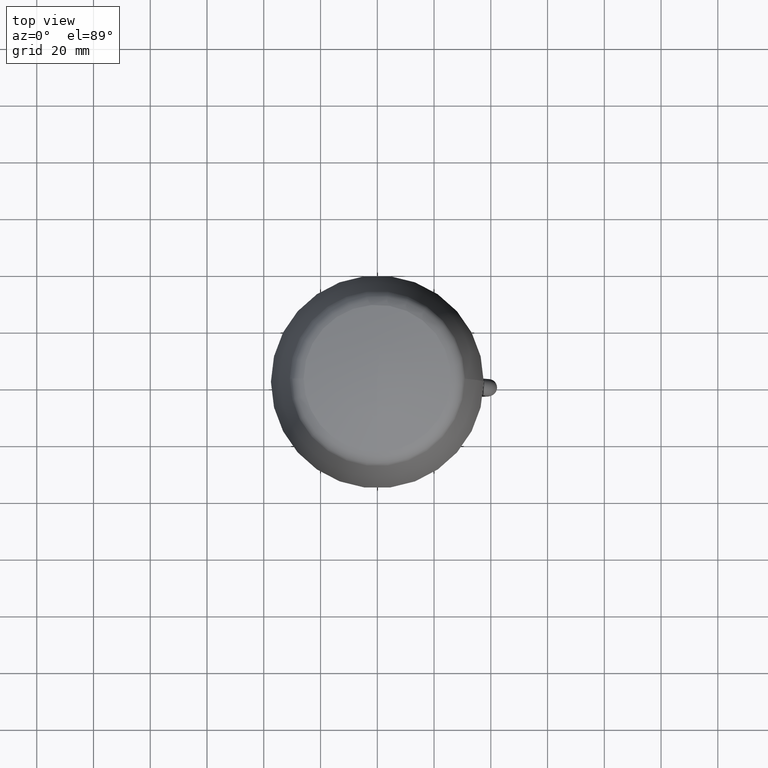
[diagram: clean part render]
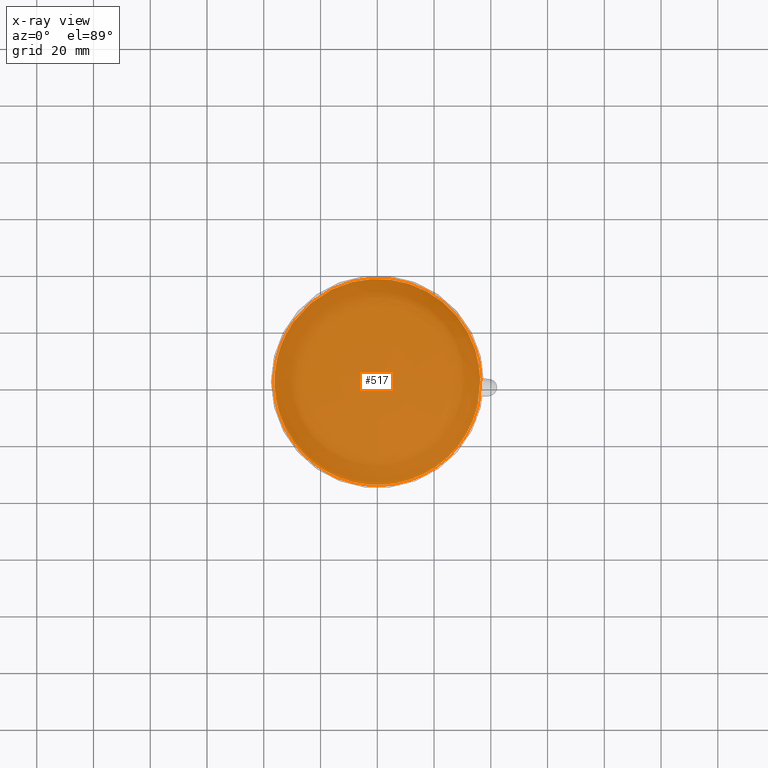
[diagram: x-ray — body ghosted, one internal face saturated and labeled with its STEP entity id]
A machine part, top view, then the same camera in x-ray: the body is ghosted and one INTERNAL B-rep face — a face not visible from any outside direction — is saturated and labeled: STEP entity #517.
In plain terms, the highlighted face is a freeform B-spline surface patch.
Its self-contained STEP definition (entity closure, byte-faithful):
#25=B_SPLINE_SURFACE_WITH_KNOTS('',3,3,((#4764,#4765,#4766,#4767),(#4768,
#4769,#4770,#4771),(#4772,#4773,#4774,#4775),(#4776,#4777,#4778,#4779)),
 .UNSPECIFIED.,.F.,.F.,.F.,(4,4),(4,4),(0.,1.),(0.,1.),.UNSPECIFIED.);
#278=FACE_OUTER_BOUND('',#1354,.T.);
#342=B_SPLINE_CURVE_WITH_KNOTS('',3,(#4540,#4541,#4542,#4543,#4544,#4545,
#4546,#4547,#4548,#4549),.UNSPECIFIED.,.F.,.F.,(4,2,2,2,4),(0.,0.25,0.5,
0.75,1.),.UNSPECIFIED.);
#343=B_SPLINE_CURVE_WITH_KNOTS('',3,(#4552,#4553,#4554,#4555,#4556,#4557,
#4558,#4559,#4560,#4561,#4562,#4563,#4564,#4565,#4566,#4567,#4568,#4569),
 .UNSPECIFIED.,.F.,.F.,(4,2,2,2,2,2,2,2,4),(0.,0.125,0.25,0.375,0.5,0.625,
0.75,0.875,1.),.UNSPECIFIED.);
#517=ADVANCED_FACE('',(#278),#25,.T.);
#1354=EDGE_LOOP('',(#1931,#1932));
#1931=ORIENTED_EDGE('',*,*,#2534,.F.);
#1932=ORIENTED_EDGE('',*,*,#2535,.F.);
#2252=VERTEX_POINT('',#4550);
#2253=VERTEX_POINT('',#4551);
#2534=EDGE_CURVE('',#2252,#2253,#342,.T.);
#2535=EDGE_CURVE('',#2253,#2252,#343,.T.);
#4540=CARTESIAN_POINT('',(-29.6035987901607,20.9600984724567,17.9522920344817));
#4541=CARTESIAN_POINT('',(-25.2297304276583,27.1359652782506,17.9522920344817));
#4542=CARTESIAN_POINT('',(-18.8749691419602,31.8857120070168,17.9522920344817));
#4543=CARTESIAN_POINT('',(-4.55175512061214,36.7779263441325,17.9522920344817));
#4544=CARTESIAN_POINT('',(3.38084390830722,36.9081478170935,17.9522920344817));
#4545=CARTESIAN_POINT('',(17.8569180519841,32.4887023305654,17.9522920344817));
#4546=CARTESIAN_POINT('',(24.3641568222882,27.9500980768455,17.9522920344817));
#4547=CARTESIAN_POINT('',(33.5126026904515,15.8921480346987,17.9522920344817));
#4548=CARTESIAN_POINT('',(36.1309095024734,8.40298556992652,17.9522920344817));
#4549=CARTESIAN_POINT('',(36.3095659279161,0.837264379117673,17.9522920344817));
#4550=CARTESIAN_POINT('',(-29.6036099685723,20.9601063889385,17.9522920344817));
#4551=CARTESIAN_POINT('',(36.3095993967024,0.837265165082106,17.9522920344817));
#4552=CARTESIAN_POINT('',(36.3095659279161,0.837264379117665,17.9522920344817));
#4553=CARTESIAN_POINT('',(36.4445858730522,-4.88054430068081,17.9522920344817));
#4554=CARTESIAN_POINT('',(35.2035519691132,-10.6261377043341,17.9522920344817));
#4555=CARTESIAN_POINT('',(30.2376640194783,-20.9308076558233,17.9522920344817));
#4556=CARTESIAN_POINT('',(26.5168977133739,-25.4814017715613,17.9522920344817));
#4557=CARTESIAN_POINT('',(17.4040782381703,-32.3953577411783,17.9522920344817));
#4558=CARTESIAN_POINT('',(12.0195264129066,-34.7530282762362,17.9522920344817));
#4559=CARTESIAN_POINT('',(0.758174675745672,-36.7600716214072,17.9522920344817));
#4560=CARTESIAN_POINT('',(-5.10935529816324,-36.4077923059332,17.9522920344817));
#4561=CARTESIAN_POINT('',(-16.0496768221279,-33.0677876817257,17.9522920344817));
#4562=CARTESIAN_POINT('',(-21.1134626946712,-30.0828117441573,17.9522920344817));
#4563=CARTESIAN_POINT('',(-29.3335919747802,-22.1282067536032,17.9522920344817));
#4564=CARTESIAN_POINT('',(-32.4831688688347,-17.1651256441241,17.9522920344817));
#4565=CARTESIAN_POINT('',(-36.1804694823146,-6.34032845844833,17.9522920344817));
#4566=CARTESIAN_POINT('',(-36.7251497174219,-0.487522964301593,17.9522920344817));
#4567=CARTESIAN_POINT('',(-35.0888206993865,10.8336383401843,17.9522920344817));
#4568=CARTESIAN_POINT('',(-32.909158413187,16.2926749794596,17.9522920344817));
#4569=CARTESIAN_POINT('',(-29.6035987901607,20.9600984724567,17.9522920344817));
#4764=CARTESIAN_POINT('',(39.94968246,-39.94968246,17.9522920344817));
#4765=CARTESIAN_POINT('',(13.32968246,-39.94968246,17.9522920344817));
#4766=CARTESIAN_POINT('',(-13.2903175399917,-39.94968246,17.9522920344817));
#4767=CARTESIAN_POINT('',(-39.91031754,-39.94968246,17.9522920344817));
#4768=CARTESIAN_POINT('',(39.94968246,-13.32968246,17.9522920344817));
#4769=CARTESIAN_POINT('',(13.32968246,-13.32968246,17.9522920344816));
#4770=CARTESIAN_POINT('',(-13.2903175399917,-13.32968246,17.9522920344816));
#4771=CARTESIAN_POINT('',(-39.91031754,-13.32968246,17.9522920344817));
#4772=CARTESIAN_POINT('',(39.94968246,13.2903175399917,17.9522920344817));
#4773=CARTESIAN_POINT('',(13.32968246,13.2903175399917,17.9522920344816));
#4774=CARTESIAN_POINT('',(-13.2903175399917,13.2903175399917,17.9522920344816));
#4775=CARTESIAN_POINT('',(-39.91031754,13.2903175399917,17.9522920344817));
#4776=CARTESIAN_POINT('',(39.94968246,39.91031754,17.9522920344817));
#4777=CARTESIAN_POINT('',(13.32968246,39.91031754,17.9522920344817));
#4778=CARTESIAN_POINT('',(-13.2903175399917,39.91031754,17.9522920344817));
#4779=CARTESIAN_POINT('',(-39.91031754,39.91031754,17.9522920344817));